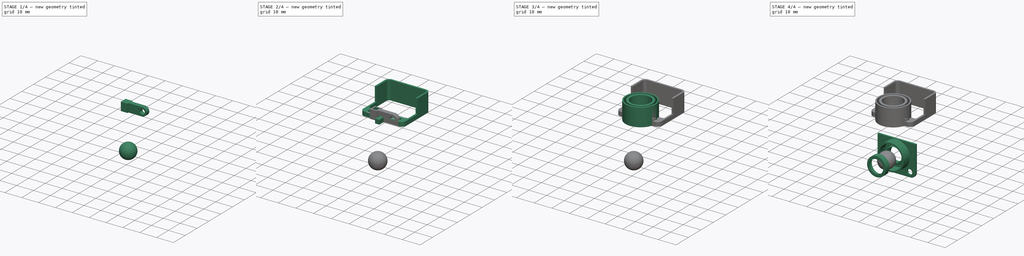
[diagram: build sequence overview — one tinted view per stage of 4, left to right]
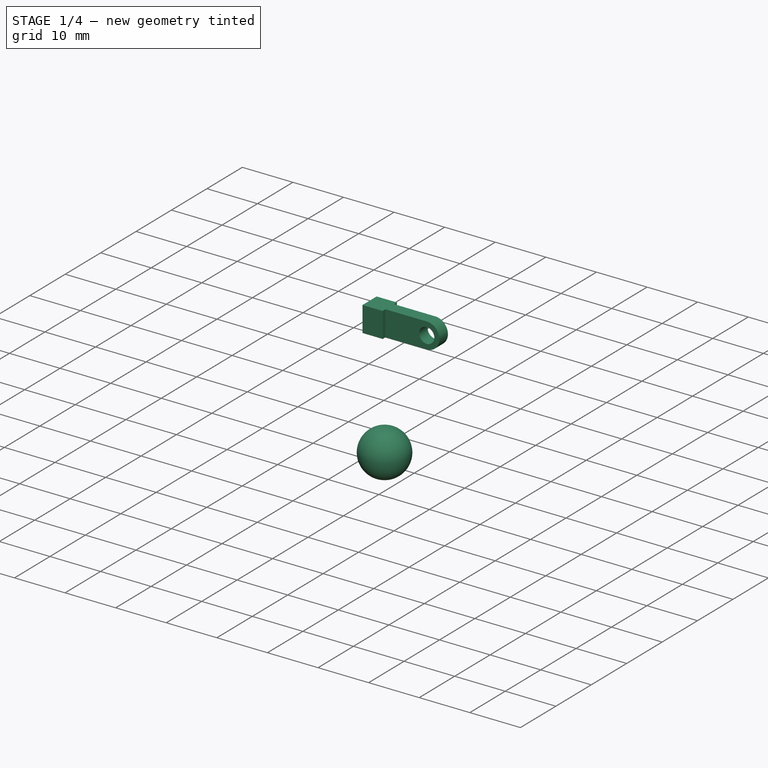
[diagram: stage 1 of 4 — iso view after this stage's code; geometry added in this stage tinted green]
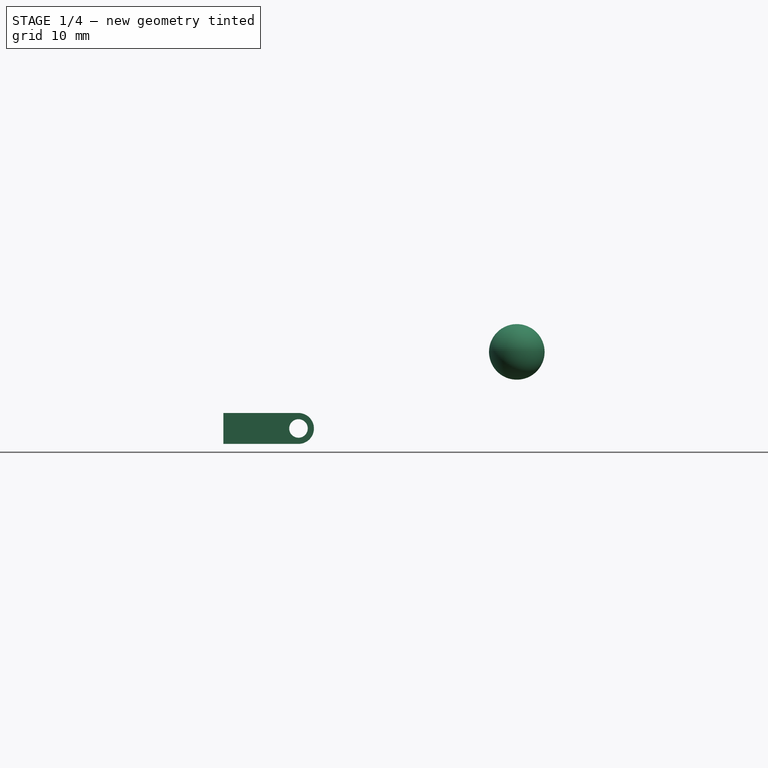
[diagram: stage 1 of 4 — front view after this stage's code; geometry added in this stage tinted green]
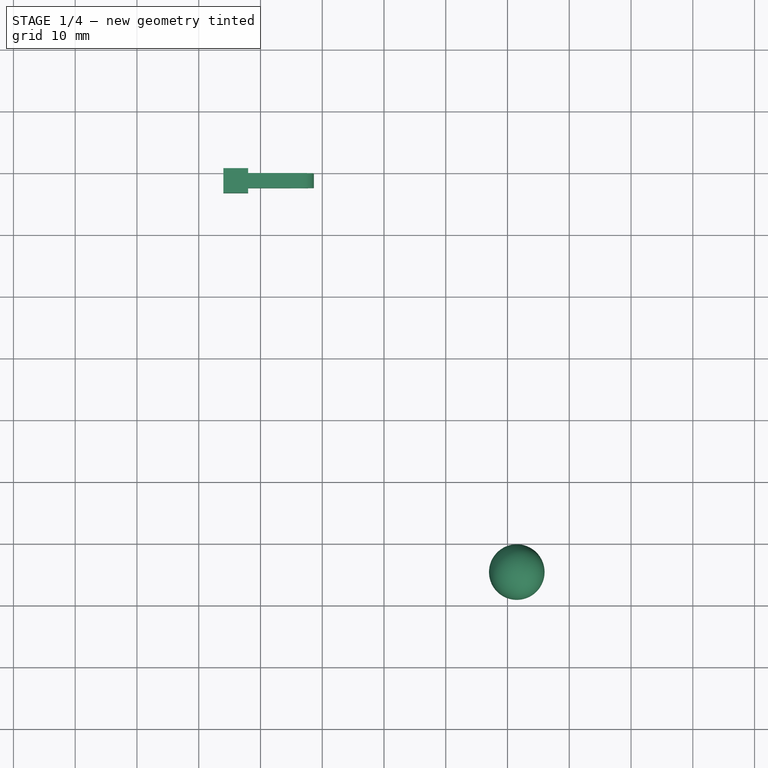
[diagram: stage 1 of 4 — top view after this stage's code; geometry added in this stage tinted green]
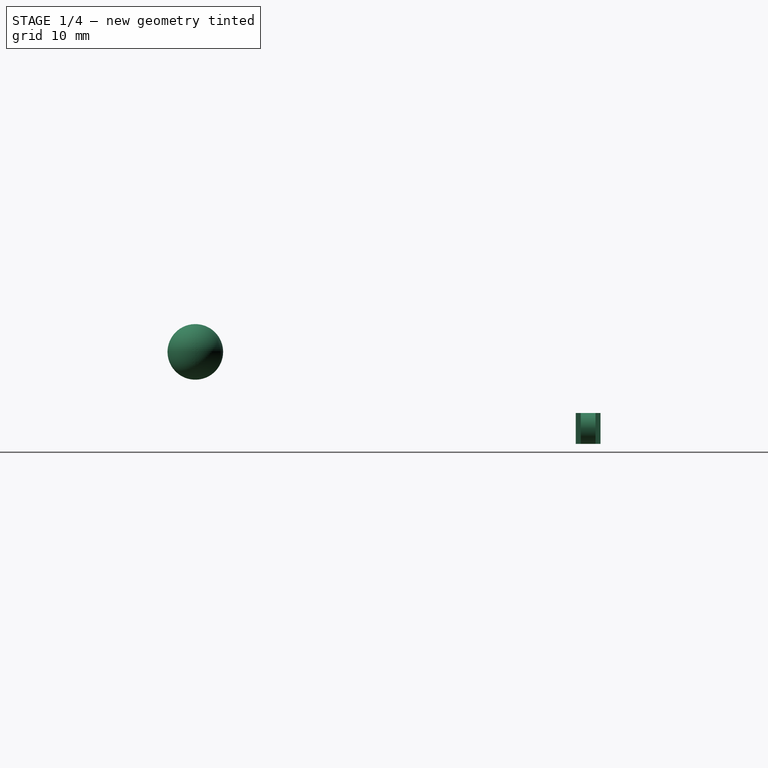
[diagram: stage 1 of 4 — right view after this stage's code; geometry added in this stage tinted green]
FCSTD DOCUMENT  (FreeCAD 0.20R29177 (Git))
Label: explode
License: All rights reserved
LicenseURL: http://en.wikipedia.org/wiki/All_rights_reserved
objects: Sketcher::SketchObject×8, PartDesign::Pad×4, PartDesign::Pocket×4, PartDesign::Body×3, Part::Cut×1, Part::Fuse×1, Spreadsheet::Sheet×1, PartDesign::AdditiveBox×1, Part::Sphere×1, Part::Feature×1
note: 33 computed .brp shape members not serialized (recipe doc carries the construction recipe); baked Part::Feature solids carry a one-line shape summary decoded from their .brp

FEATURE [PartDesign::Body] Body007  label="SpacersShadow"
  Group = -> [Sketch024,Pad014,Sketch025,Pad015]
  Origin = -> Origin007
  Placement = pos=(41.5,-38.1,7.5) rot=(1,0,0;1.5708rad)
  Tip = -> Pad015
FEATURE [Sketcher::SketchObject] Sketch018  label="CS-Ext-Base001"
  FullyConstrained = false
  MapMode = 5
  Placement = pos=(0,0,0) rot=(1,0,0;1.5708rad)
  Support = -> [XZ_Plane004]
  sketch-geometry (5):
    g0: LineSegment StartX=-6 StartY=5 StartZ=0 EndX=6 EndY=5 EndZ=0
    g1: LineSegment StartX=6.15088 StartY=0 StartZ=0 EndX=-6 EndY=0 EndZ=0
    g2: LineSegment StartX=-6 StartY=0 StartZ=0 EndX=-6 EndY=5 EndZ=0
    g3: ArcOfCircle CenterX=6.15088 CenterY=2.50228 CenterZ=0 NormalX=0 NormalY=0 NormalZ=1 AngleXU=0 Radius=2.50228 StartAngle=4.71239 EndAngle=7.91431
    g4: Circle CenterX=6.15088 CenterY=2.50228 CenterZ=0 NormalX=0 NormalY=0 NormalZ=1 AngleXU=0 Radius=1.5
  constraints (11):
    c: Coincident(g1,g2)
    c: Coincident(g2,g0)
    c: Horizontal(g1)
    c: Vertical(g2)
    c: PointOnObject(g1,g-1)
    c: Symmetric(g0,g0,g-2)
    c: DistanceY(g1,g0) = 5
    c: Coincident(g3,g0)
    c: Coincident(g4,g3)
    c: Diameter(g4) = 3
    c: DistanceX(g0,g0) = 12
FEATURE [PartDesign::Pad] Pad012  label="CS-Ext-Base"
  Direction = (0,-1,-2e-16)
  Length = 2.4
  Length2 = 10
  Placement = pos=(0,0,0) rot=(1,0,0;1.5708rad)
  Profile = -> Sketch018
  ReferenceAxis = -> Sketch018 [N_Axis]
  Type = 0
FEATURE [PartDesign::AdditiveBox] Box008  label="CS-Ext-Box"
  AttacherType = Attacher::AttachEngine3D
  AttachmentOffset = pos=(-6,0,-0.8) rot=(0,0,1;0rad)
  BaseFeature = -> Pad012
  Height = 4
  Length = 4
  MapMode = 2
  Placement = pos=(-6,0.8,2e-16) rot=(1,0,0;1.5708rad)
  Support = -> [Sketch018]
  Width = 5
FEATURE [PartDesign::Body] Body005  label="CS-Ext"
  Group = -> [Sketch018,Pad012,Box008,Sketch019,Pocket009]
  Origin = -> Origin005
  Placement = pos=(40.3,-35.2,-10.6) rot=(0,0,1;1.5708rad)
  Tip = -> Pocket009
FEATURE [Part::Sphere] Sphere
  Angle1 = -90
  Angle2 = 90
  Angle3 = 360
  AttacherType = Attacher::AttachEngine3D
  Placement = pos=(41.5,-64.8,14.9) rot=(0,0,1;0rad)
  Radius = 4.5
FEATURE [Part::Feature] tcs34725_rgb_sensor
  Placement = pos=(41.5,-22.1,15) rot=(-0.707107,0,0.707107;3.14159rad)
  shape: bbox 21.32 x 3.06 x 21.32 mm, 747 faces (baked)
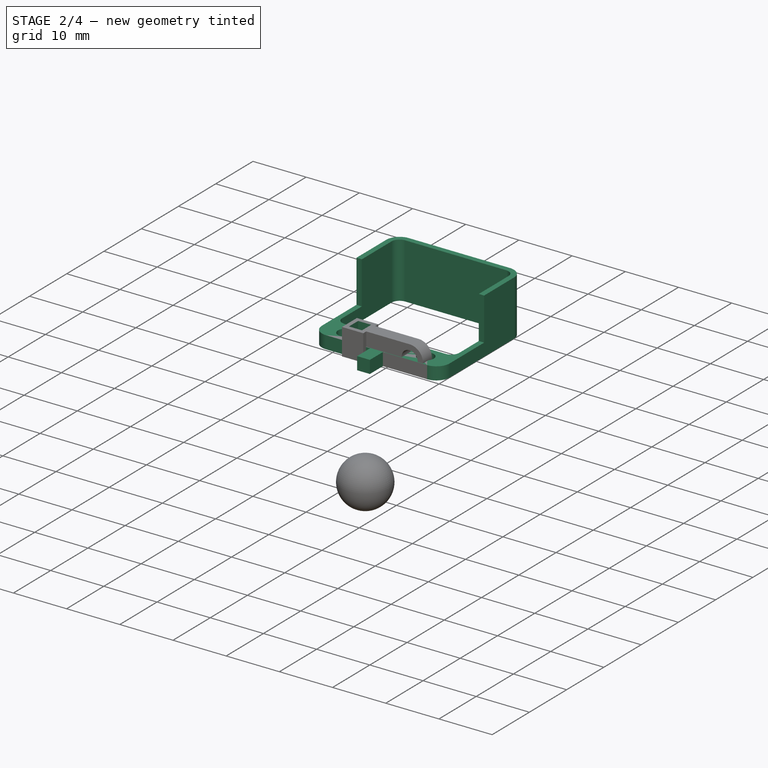
[diagram: stage 2 of 4 — iso view after this stage's code; geometry added in this stage tinted green]
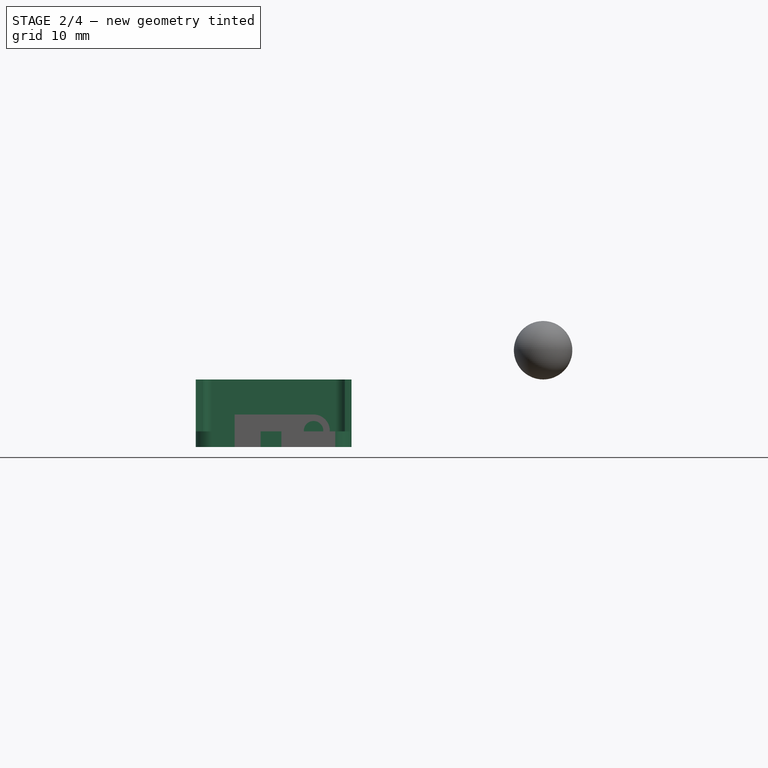
[diagram: stage 2 of 4 — front view after this stage's code; geometry added in this stage tinted green]
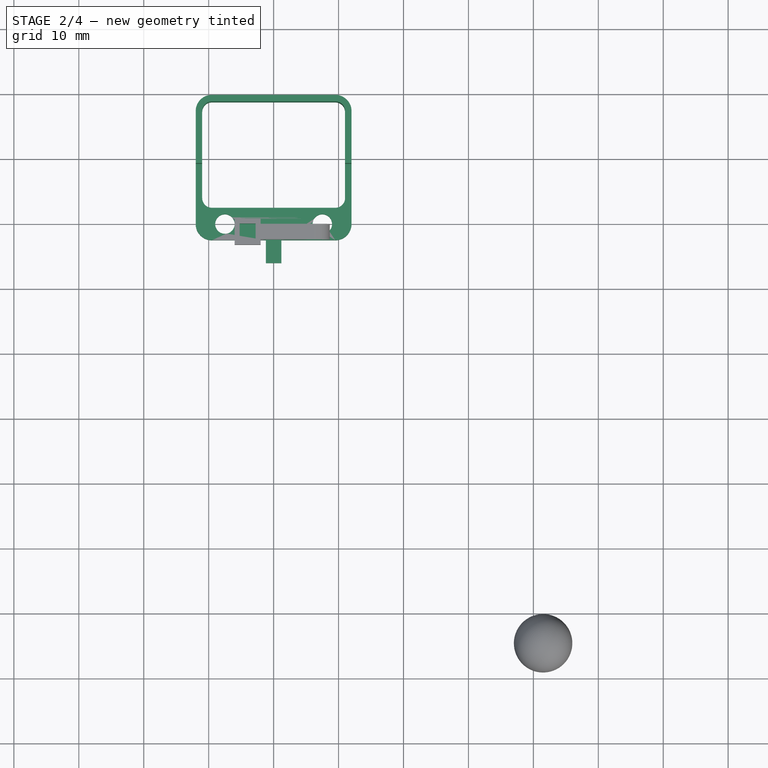
[diagram: stage 2 of 4 — top view after this stage's code; geometry added in this stage tinted green]
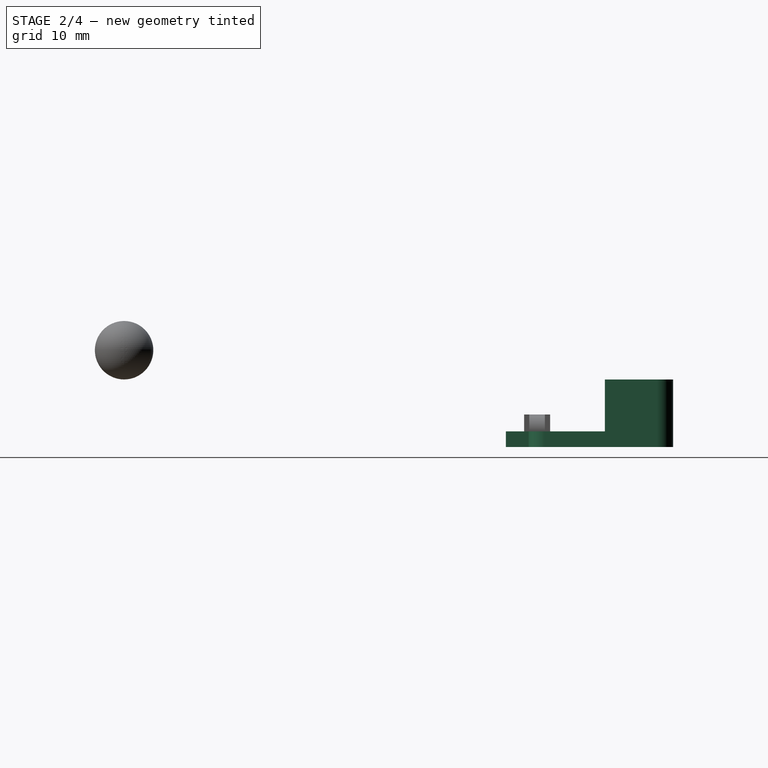
[diagram: stage 2 of 4 — right view after this stage's code; geometry added in this stage tinted green]
FEATURE [PartDesign::Body] Body006  label="SlitHorizontal"
  Group = -> [Sketch020,Pad013,Sketch021,Pocket010,Sketch022,Pocket011,Sketch023,Pocket012]
  Origin = -> Origin006
  Placement = pos=(41.45,-89.75,15.2) rot=(1,0,0;4.71239rad)
  Tip = -> Pocket012
FEATURE [Spreadsheet::Sheet] Spreadsheet001  label="params001"
  cells = A2(baseHeight)=1.5; C2=10mm Lens; D2=6mm Height; A3(lcdLength)=90; C3=8mm Lens; D3=4mm Height; A4(lcdWidth)=50; A5(holderWidthPole)=6; A6(lensDiameter)=8; A7(lensHeight)=1.25
FEATURE [Sketcher::SketchObject] Sketch024  label="SpacersShadowMain001"
  FullyConstrained = true
  MapMode = 5
  Support = -> [XY_Plane006]
  sketch-geometry (26):
    g0: Circle CenterX=-7.5 CenterY=0 CenterZ=0 NormalX=0 NormalY=0 NormalZ=1 AngleXU=0 Radius=1.5
    g1: Circle CenterX=7.5 CenterY=0 CenterZ=0 NormalX=0 NormalY=0 NormalZ=1 AngleXU=0 Radius=1.5
    g2: LineSegment StartX=1.2 StartY=-2.5 StartZ=0 EndX=1.2 EndY=-6 EndZ=0
    g3: LineSegment StartX=1.2 StartY=-6 StartZ=0 EndX=-1.2 EndY=-6 EndZ=0
    g4: LineSegment StartX=-1.2 StartY=-6 StartZ=0 EndX=-1.2 EndY=-2.5 EndZ=0
    g5: ArcOfCircle CenterX=-9.5 CenterY=17.25 CenterZ=0 NormalX=0 NormalY=0 NormalZ=1 AngleXU=0 Radius=2.5 StartAngle=1.5708 EndAngle=3.14159
    g6: LineSegment StartX=-9.5 StartY=19.75 StartZ=0 EndX=9.5 EndY=19.75 EndZ=0
    g7: ArcOfCircle CenterX=9.5 CenterY=17.25 CenterZ=0 NormalX=0 NormalY=0 NormalZ=1 AngleXU=0 Radius=2.5 StartAngle=0 EndAngle=1.5708
    g8: LineSegment StartX=12 StartY=17.25 StartZ=0 EndX=12 EndY=1.42e-14 EndZ=0
    g9: ArcOfCircle CenterX=9.5 CenterY=7.1e-15 CenterZ=0 NormalX=0 NormalY=0 NormalZ=1 AngleXU=0 Radius=2.5 StartAngle=4.71239 EndAngle=6.28319
    g10: LineSegment StartX=9.5 StartY=-2.5 StartZ=0 EndX=1.2 EndY=-2.5 EndZ=0
    g11: ArcOfCircle CenterX=-9.5 CenterY=0 CenterZ=0 NormalX=0 NormalY=0 NormalZ=1 AngleXU=0 Radius=2.5 StartAngle=3.14159 EndAngle=4.71239
    g12: LineSegment StartX=-12 StartY=-8e-16 StartZ=0 EndX=-12 EndY=17.25 EndZ=0
    g13: GeomPoint X=-12 Y=19.75 Z=0
    g14: GeomPoint X=12 Y=-2.5 Z=0
    g15: LineSegment StartX=-1.2 StartY=-2.5 StartZ=0 EndX=-9.5 EndY=-2.5 EndZ=0
    g16: ArcOfCircle CenterX=-9.5 CenterY=17.25 CenterZ=0 NormalX=0 NormalY=0 NormalZ=1 AngleXU=0 Radius=1.5 StartAngle=1.5708 EndAngle=3.14159
    g17: LineSegment StartX=-9.5 StartY=18.75 StartZ=0 EndX=9.5 EndY=18.75 EndZ=0
    g18: ArcOfCircle CenterX=9.5 CenterY=17.25 CenterZ=0 NormalX=0 NormalY=0 NormalZ=1 AngleXU=0 Radius=1.5 StartAngle=0 EndAngle=1.5708
    g19: LineSegment StartX=11 StartY=17.25 StartZ=0 EndX=11 EndY=4 EndZ=0
    g20: ArcOfCircle CenterX=9.5 CenterY=4 CenterZ=0 NormalX=0 NormalY=0 NormalZ=1 AngleXU=0 Radius=1.5 StartAngle=4.71239 EndAngle=6.28319
    g21: LineSegment StartX=9.5 StartY=2.5 StartZ=0 EndX=-9.5 EndY=2.5 EndZ=0
    g22: ArcOfCircle CenterX=-9.5 CenterY=4 CenterZ=0 NormalX=0 NormalY=0 NormalZ=1 AngleXU=0 Radius=1.5 StartAngle=3.14159 EndAngle=4.71239
    g23: LineSegment StartX=-11 StartY=4 StartZ=0 EndX=-11 EndY=17.25 EndZ=0
    g24: GeomPoint X=-11 Y=18.75 Z=0
    g25: GeomPoint X=11 Y=2.5 Z=0
  constraints (65):
    c: Equal(g0,g1)
    c: Diameter(g0) = 3
    c: Coincident(g2,g3)
    c: Coincident(g3,g4)
    c: Horizontal(g3)
    c: Vertical(g2)
    c: Vertical(g4)
    c: Symmetric(g4,g2,g-2)
    c: DistanceX(g3,g3) = 2.4
    c: DistanceY(g2,g2) = 3.5
    c: Tangent(g5,g6) = 1.5708
    c: Tangent(g6,g7) = 1.5708
    c: Tangent(g7,g8) = 1.5708
    c: Tangent(g8,g9) = 1.5708
    c: Tangent(g9,g10) = 1.5708
    c: Coincident(g15,g11) = 1.5708
    c: Tangent(g11,g12) = 1.5708
    c: Tangent(g12,g5) = 1.5708
    c: Horizontal(g6)
    c: Horizontal(g10)
    c: Vertical(g8)
    c: Vertical(g12)
    c: Equal(g5,g7)
    c: Equal(g7,g9)
    c: Equal(g9,g11)
    c: PointOnObject(g13,g6)
    c: PointOnObject(g13,g12)
    c: PointOnObject(g14,g8)
    c: PointOnObject(g14,g10)
    c: PointOnObject(g11,g-1)
    c: DistanceX(g11,g9) = 19
    c: DistanceX(g11,g-1) = 9.5
    c: Diameter(g11) = 5
    c: Coincident(g10,g2)
    c: Horizontal(g15)
    c: Coincident(g15,g4)
    c: DistanceX(g11,g11) = 0
    c: PointOnObject(g0,g-1)
    c: PointOnObject(g1,g-1)
    c: DistanceX(g0,g-1) = 7.5
    c: DistanceX(g0,g1) = 15
    c: DistanceY(g8,g8) = 17.25
    c: Tangent(g16,g17) = 1.5708
    c: Tangent(g17,g18) = 1.5708
    c: Tangent(g18,g19) = 1.5708
    c: Tangent(g19,g20) = 1.5708
    c: Tangent(g20,g21) = 1.5708
    c: Tangent(g21,g22) = 1.5708
    c: Tangent(g22,g23) = 1.5708
    c: Tangent(g23,g16) = 1.5708
    c: Horizontal(g17)
    c: Horizontal(g21)
    c: Vertical(g19)
    c: Vertical(g23)
    c: Equal(g16,g18)
    c: Equal(g18,g20)
    c: Equal(g20,g22)
    c: PointOnObject(g24,g17)
    c: PointOnObject(g24,g23)
    c: PointOnObject(g25,g19)
    c: PointOnObject(g25,g21)
    c: Diameter(g16) = 3
    c: Coincident(g16,g5)
    c: DistanceX(g17,g17) = 19
    c: DistanceY(g9,g20) = 5
FEATURE [PartDesign::Pad] Pad014  label="SpacersShadowMain"
  Direction = (0,0,1)
  Length = 2.4
  Length2 = 10
  Profile = -> Sketch024
  ReferenceAxis = -> Sketch024 [N_Axis]
  Type = 0
FEATURE [Sketcher::SketchObject] Sketch025  label="Shadow001"
  FullyConstrained = true
  MapMode = 5
  Placement = pos=(0,0,2.4) rot=(0,0,1;0rad)
  Support = -> [Pad014]
  expr: Constraints[8] = 17.25 + 1.5
  sketch-geometry (12):
    g0: ArcOfCircle CenterX=-9.5 CenterY=17.25 CenterZ=0 NormalX=0 NormalY=0 NormalZ=1 AngleXU=0 Radius=1.5 StartAngle=1.5708 EndAngle=3.14159
    g1: ArcOfCircle CenterX=9.5 CenterY=17.25 CenterZ=0 NormalX=0 NormalY=0 NormalZ=1 AngleXU=0 Radius=1.5 StartAngle=0 EndAngle=1.5708
    g2: LineSegment StartX=-9.5 StartY=18.75 StartZ=0 EndX=9.5 EndY=18.75 EndZ=0
    g3: LineSegment StartX=-11 StartY=17.25 StartZ=0 EndX=-11 EndY=9.25 EndZ=0
    g4: LineSegment StartX=11 StartY=17.25 StartZ=0 EndX=11 EndY=9.25 EndZ=0
    g5: LineSegment StartX=-11 StartY=9.25 StartZ=0 EndX=-12 EndY=9.25 EndZ=0
    g6: LineSegment StartX=11 StartY=9.25 StartZ=0 EndX=12 EndY=9.25 EndZ=0
    g7: LineSegment StartX=-12 StartY=9.25 StartZ=0 EndX=-12 EndY=17.25 EndZ=0
    g8: LineSegment StartX=12 StartY=9.25 StartZ=0 EndX=12 EndY=17.25 EndZ=0
    g9: LineSegment StartX=-9.5 StartY=19.75 StartZ=0 EndX=9.5 EndY=19.75 EndZ=0
    g10: ArcOfCircle CenterX=-9.5 CenterY=17.25 CenterZ=0 NormalX=0 NormalY=0 NormalZ=1 AngleXU=0 Radius=2.5 StartAngle=1.5708 EndAngle=3.14159
    g11: ArcOfCircle CenterX=9.5 CenterY=17.25 CenterZ=0 NormalX=0 NormalY=0 NormalZ=1 AngleXU=0 Radius=2.5 StartAngle=6e-16 EndAngle=1.5708
  constraints (40):
    c: DistanceY(g-1,g0) = 17.25
    c: DistanceY(g-1,g1) = 17.25
    c: DistanceX(g0,g1) = 19
    c: DistanceX(g-1,g1) = 9.5
    c: Equal(g0,g1)
    c: Diameter(g0) = 3
    c: Horizontal(g2)
    c: DistanceX(g2,g2) = 19
    c: DistanceY(g-1,g2) = 18.75
    c: DistanceX(g2,g-1) = 9.5
    c: PointOnObject(g0,g2)
    c: PointOnObject(g1,g2)
    c: Vertical(g3)
    c: Vertical(g4)
    c: Equal(g3,g4)
    c: Coincident(g3,g0)
    c: DistanceY(g0,g0) = 0
    c: Coincident(g4,g1)
    c: DistanceY(g1,g1) = 0
    c: Coincident(g5,g3)
    c: Coincident(g6,g4)
    c: Horizontal(g6)
    c: Horizontal(g5)
    c: Equal(g5,g6)
    c: Coincident(g7,g5)
    c: Vertical(g7)
    c: Coincident(g8,g6)
    c: Vertical(g8)
    c: Equal(g7,g3)
    c: Equal(g3,g8)
    c: Coincident(g10,g0)
    c: Coincident(g10,g7)
    c: Coincident(g10,g9)
    c: Coincident(g11,g1)
    c: Coincident(g11,g8)
    c: Coincident(g11,g9)
    c: Diameter(g11) = 5
    c: DistanceX(g9,g-1) = 9.5
    c: DistanceX(g-1,g9) = 9.5
    c: DistanceY(g8,g8) = 8
FEATURE [PartDesign::Pad] Pad015  label="Shadow"
  BaseFeature = -> Pad014
  Direction = (0,0,1)
  Length = 8
  Length2 = 10
  Profile = -> Sketch025
  ReferenceAxis = -> Sketch025 [N_Axis]
  Type = 0
FEATURE [Sketcher::SketchObject] Sketch019  label="CS-Ext-Hole001"
  FullyConstrained = true
  MapMode = 5
  Placement = pos=(-6,0.8,5) rot=(0,0,1;3.14159rad)
  Support = -> [Box008]
  expr: Constraints[10] = (4 - 2.45) / 2
  expr: Constraints[11] = (4 - 2.45) / 2
  sketch-geometry (4):
    g0: LineSegment StartX=-3.225 StartY=3.225 StartZ=0 EndX=-0.775 EndY=3.225 EndZ=0
    g1: LineSegment StartX=-0.775 StartY=3.225 StartZ=0 EndX=-0.775 EndY=0.775 EndZ=0
    g2: LineSegment StartX=-0.775 StartY=0.775 StartZ=0 EndX=-3.225 EndY=0.775 EndZ=0
    g3: LineSegment StartX=-3.225 StartY=0.775 StartZ=0 EndX=-3.225 EndY=3.225 EndZ=0
  constraints (12):
    c: Coincident(g0,g1)
    c: Coincident(g1,g2)
    c: Coincident(g2,g3)
    c: Coincident(g3,g0)
    c: Horizontal(g0)
    c: Horizontal(g2)
    c: Vertical(g1)
    c: Vertical(g3)
    c: Distance(g0) = 2.45
    c: Equal(g3,g0)
    c: DistanceX(g1,g-1) = 0.775
    c: DistanceY(g-1,g1) = 0.775
FEATURE [PartDesign::Pocket] Pocket009  label="CS-Ext-Hole"
  BaseFeature = -> Box008
  Direction = (0,2e-16,-1)
  Length = 5
  Length2 = 5
  Placement = pos=(-6,0.8,0) rot=(1,0,0;1.5708rad)
  Profile = -> Sketch019
  ReferenceAxis = -> Sketch019 [N_Axis]
  Type = 1
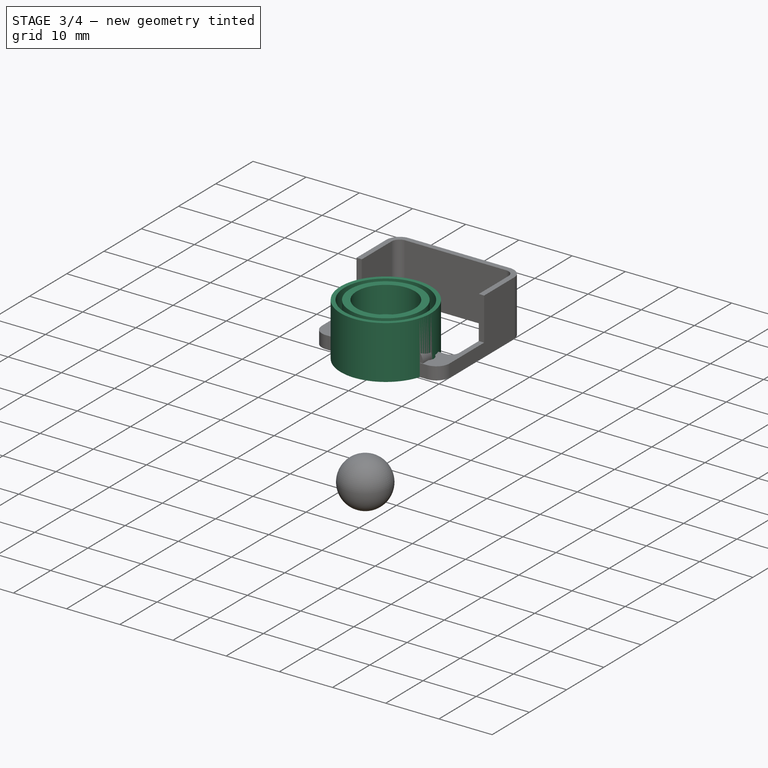
[diagram: stage 3 of 4 — iso view after this stage's code; geometry added in this stage tinted green]
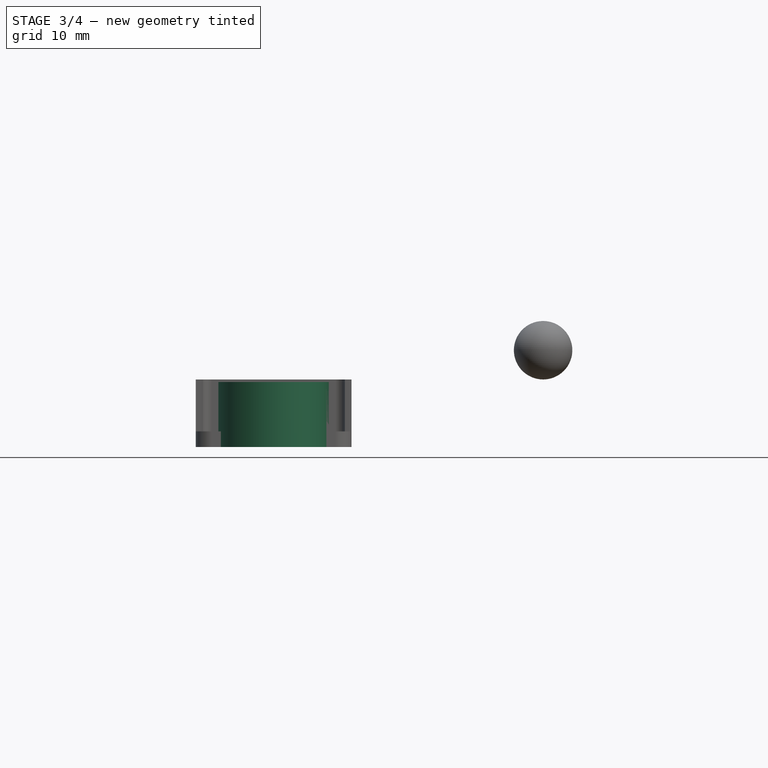
[diagram: stage 3 of 4 — front view after this stage's code; geometry added in this stage tinted green]
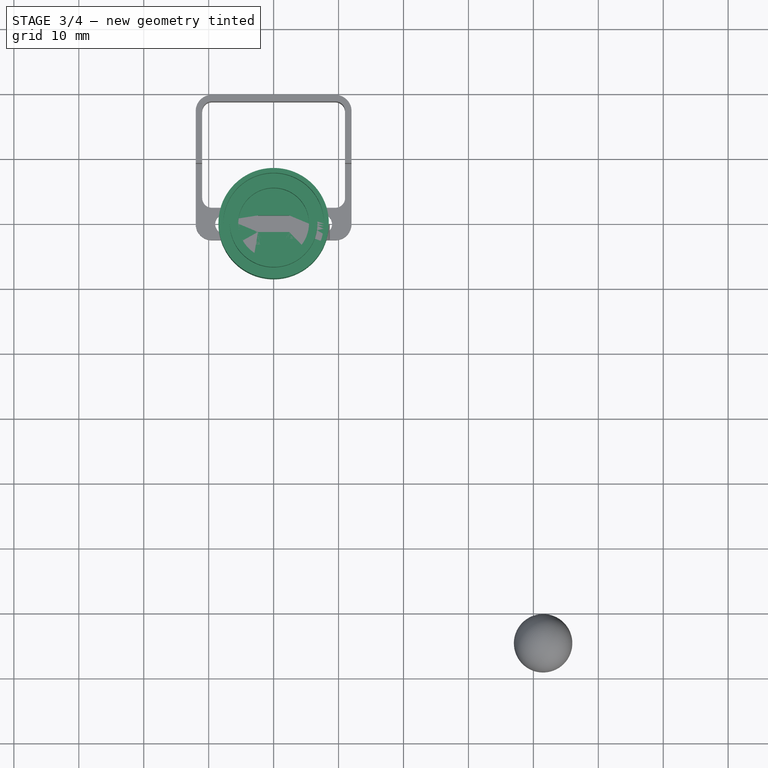
[diagram: stage 3 of 4 — top view after this stage's code; geometry added in this stage tinted green]
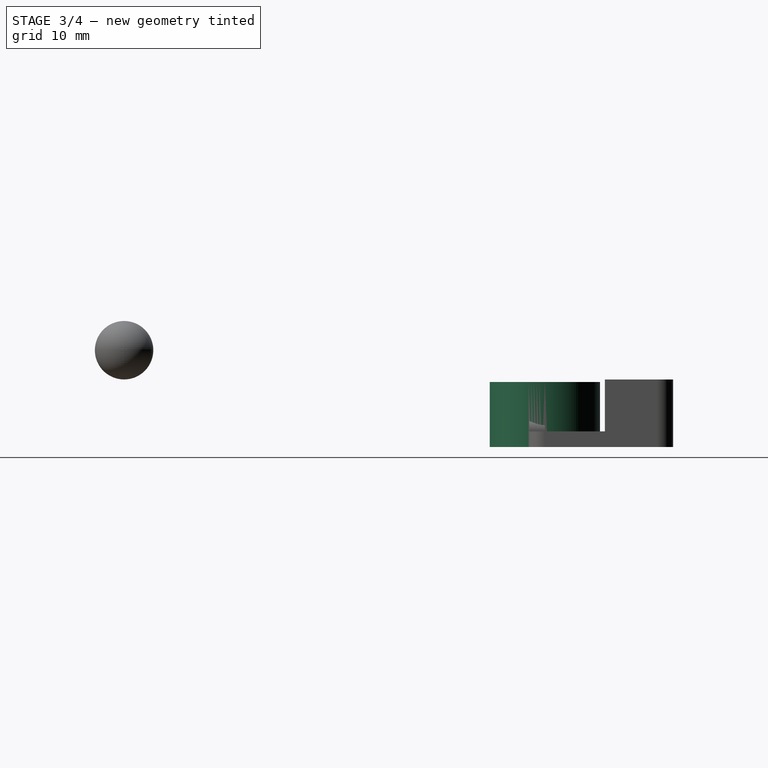
[diagram: stage 3 of 4 — right view after this stage's code; geometry added in this stage tinted green]
FEATURE [Sketcher::SketchObject] Sketch020  label="SlitBaseH001"
  FullyConstrained = true
  MapMode = 5
  Support = -> [XY_Plane005]
  sketch-geometry (5):
    g0: Circle CenterX=0 CenterY=0 CenterZ=0 NormalX=0 NormalY=0 NormalZ=1 AngleXU=0 Radius=8.5
    g1: LineSegment StartX=-2.41 StartY=1.275 StartZ=0 EndX=2.41 EndY=1.275 EndZ=0
    g2: LineSegment StartX=2.41 StartY=1.275 StartZ=0 EndX=2.41 EndY=-1.275 EndZ=0
    g3: LineSegment StartX=2.41 StartY=-1.275 StartZ=0 EndX=-2.41 EndY=-1.275 EndZ=0
    g4: LineSegment StartX=-2.41 StartY=-1.275 StartZ=0 EndX=-2.41 EndY=1.275 EndZ=0
  constraints (13):
    c: Diameter(g0) = 17
    c: Coincident(g1,g2)
    c: Coincident(g2,g3)
    c: Coincident(g3,g4)
    c: Coincident(g4,g1)
    c: Horizontal(g1)
    c: Horizontal(g3)
    c: Vertical(g2)
    c: Vertical(g4)
    c: Symmetric(g1,g2,g0)
    c: Coincident(g0,g-1)
    c: DistanceY(g2,g2) = 2.55
    c: DistanceX(g1,g1) = 4.82
FEATURE [PartDesign::Pad] Pad013  label="SlitBaseH"
  Direction = (0,0,1)
  Length = 10
  Length2 = 10
  Profile = -> Sketch020
  ReferenceAxis = -> Sketch020 [N_Axis]
  Type = 0
FEATURE [Sketcher::SketchObject] Sketch021  label="SlitFixH001"
  FullyConstrained = true
  MapMode = 5
  Placement = pos=(0,0,10) rot=(0,0,1;0rad)
  Support = -> [Pad013]
  sketch-geometry (2):
    g0: Circle CenterX=0 CenterY=0 CenterZ=0 NormalX=0 NormalY=0 NormalZ=1 AngleXU=0 Radius=7.75
    g1: Circle CenterX=0 CenterY=0 CenterZ=0 NormalX=0 NormalY=0 NormalZ=1 AngleXU=0 Radius=6.75
  constraints (4):
    c: Coincident(g0,g-1)
    c: Coincident(g1,g0)
    c: Diameter(g1) = 13.5
    c: Diameter(g0) = 15.5
FEATURE [PartDesign::Pocket] Pocket010  label="SlitFixH"
  BaseFeature = -> Pad013
  Direction = (0,0,-1)
  Length = 5
  Length2 = 5
  Profile = -> Sketch021
  ReferenceAxis = -> Sketch021 [N_Axis]
  Type = 0
FEATURE [Sketcher::SketchObject] Sketch022  label="SlitPocketH001"
  FullyConstrained = true
  MapMode = 5
  Placement = pos=(0,0,10) rot=(0,0,1;0rad)
  Support = -> [Pocket010]
  expr: Constraints[1] = <<params001>>.lensDiameter + 2.9
  sketch-geometry (1):
    g0: Circle CenterX=0 CenterY=0 CenterZ=0 NormalX=0 NormalY=0 NormalZ=1 AngleXU=0 Radius=5.45
  constraints (2):
    c: Coincident(g0,g-1)
    c: Diameter(g0) = 10.9
FEATURE [PartDesign::Pocket] Pocket011  label="SlitPocketH"
  BaseFeature = -> Pocket010
  Direction = (0,0,-1)
  Length = 5
  Length2 = 5
  Profile = -> Sketch022
  ReferenceAxis = -> Sketch022 [N_Axis]
  Type = 0
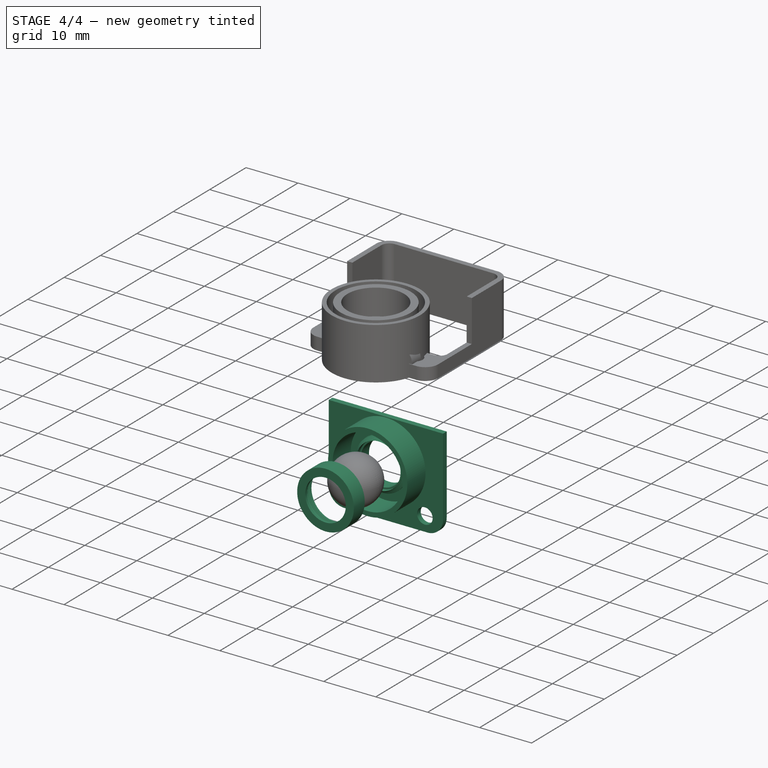
[diagram: stage 4 of 4 — iso view after this stage's code; geometry added in this stage tinted green]
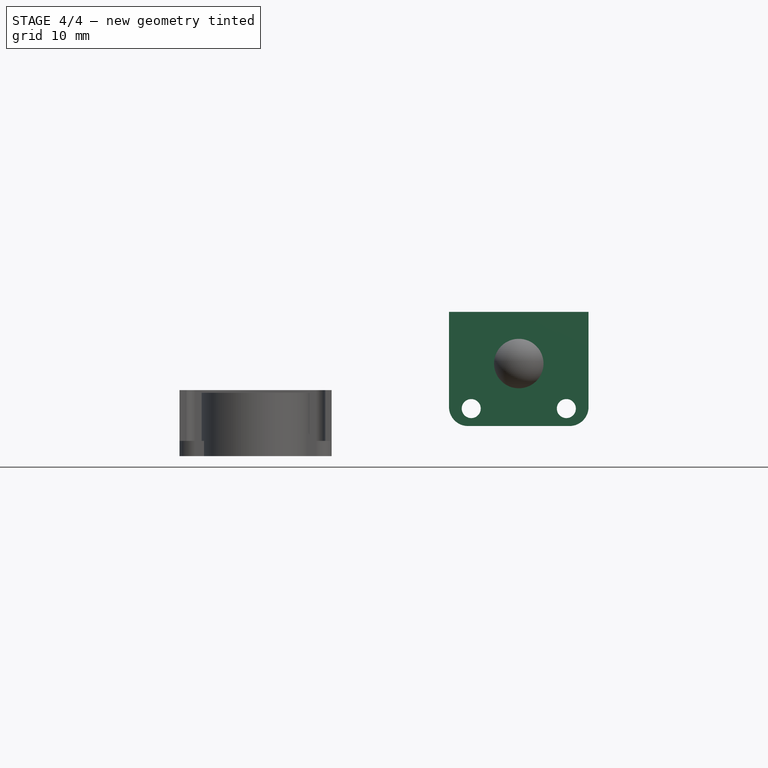
[diagram: stage 4 of 4 — front view after this stage's code; geometry added in this stage tinted green]
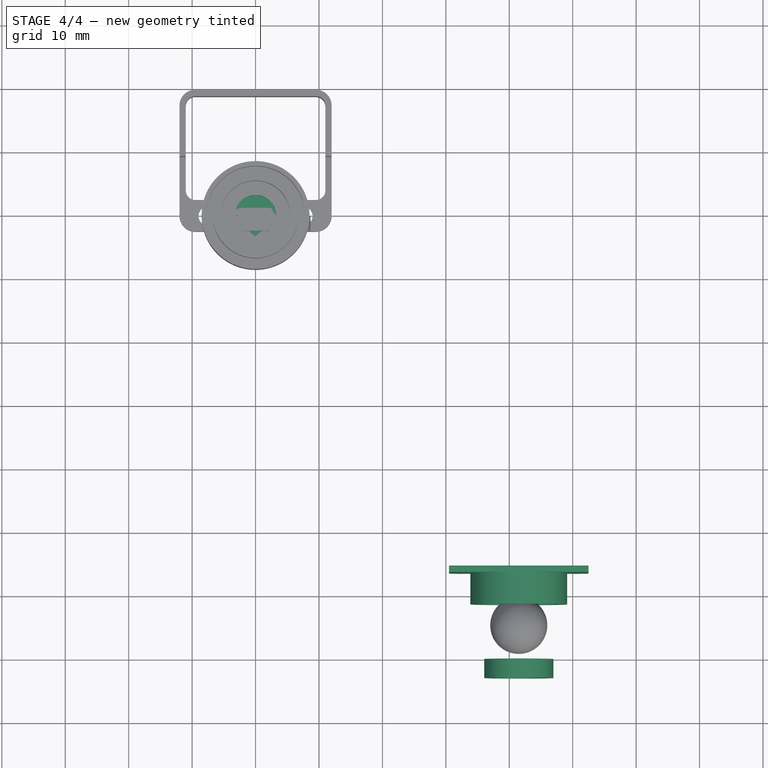
[diagram: stage 4 of 4 — top view after this stage's code; geometry added in this stage tinted green]
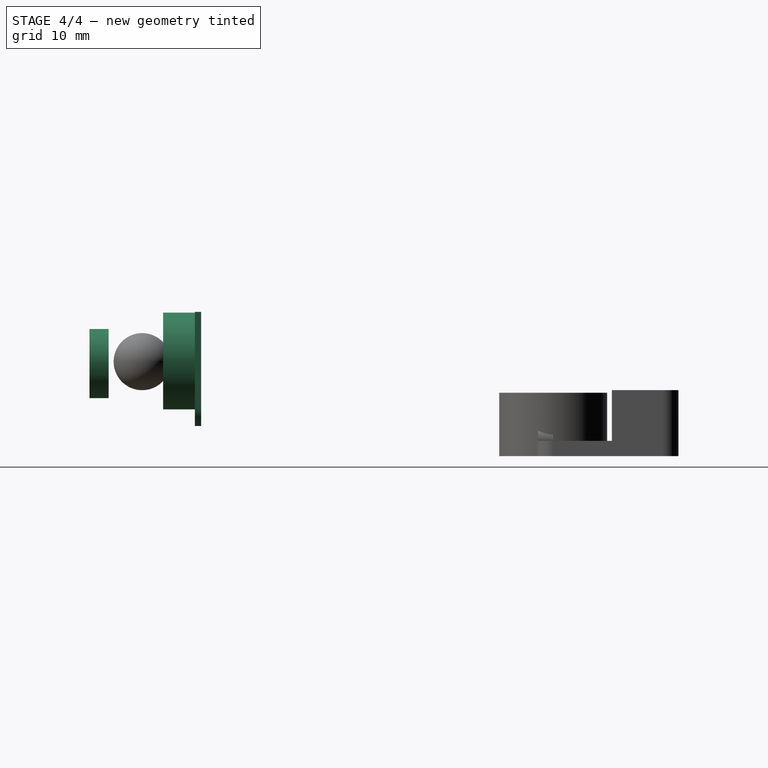
[diagram: stage 4 of 4 — right view after this stage's code; geometry added in this stage tinted green]
FEATURE [Part::Cut] Cut003  label="PD-cap"
  Placement = pos=(41.5,-73.1,14.6) rot=(1,0,0;4.71239rad)
FEATURE [Part::Fuse] Fusion009  label="PD-holder-cap"
  Placement = pos=(41.5,-55.5,15) rot=(1,0,0;1.5708rad)
FEATURE [Sketcher::SketchObject] Sketch023  label="SlitPocketHLens001"
  FullyConstrained = true
  MapMode = 5
  Placement = pos=(0,0,5) rot=(0,0,1;0rad)
  Support = -> [Pocket011]
  sketch-geometry (1):
    g0: Circle CenterX=0 CenterY=0 CenterZ=0 NormalX=0 NormalY=0 NormalZ=1 AngleXU=0 Radius=3.25
  constraints (2):
    c: Coincident(g0,g-1)
    c: Diameter(g0) = 6.5
FEATURE [PartDesign::Pocket] Pocket012  label="SlitPocketHLens"
  BaseFeature = -> Pocket011
  Direction = (0,0,-1)
  Length = 2
  Length2 = 5
  Profile = -> Sketch023
  ReferenceAxis = -> Sketch023 [N_Axis]
  Type = 0
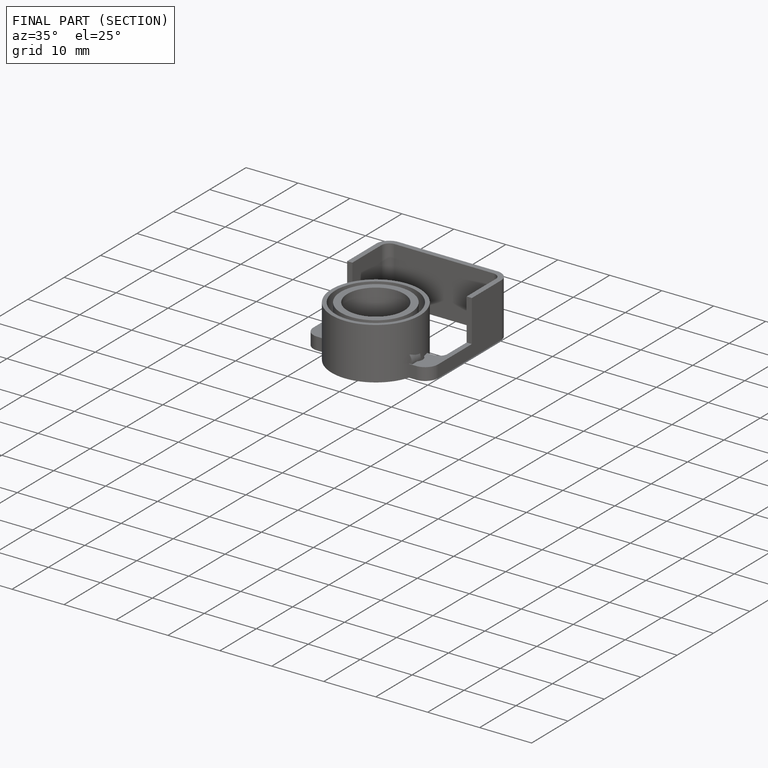
[diagram: finished part — half-section view (interior)]
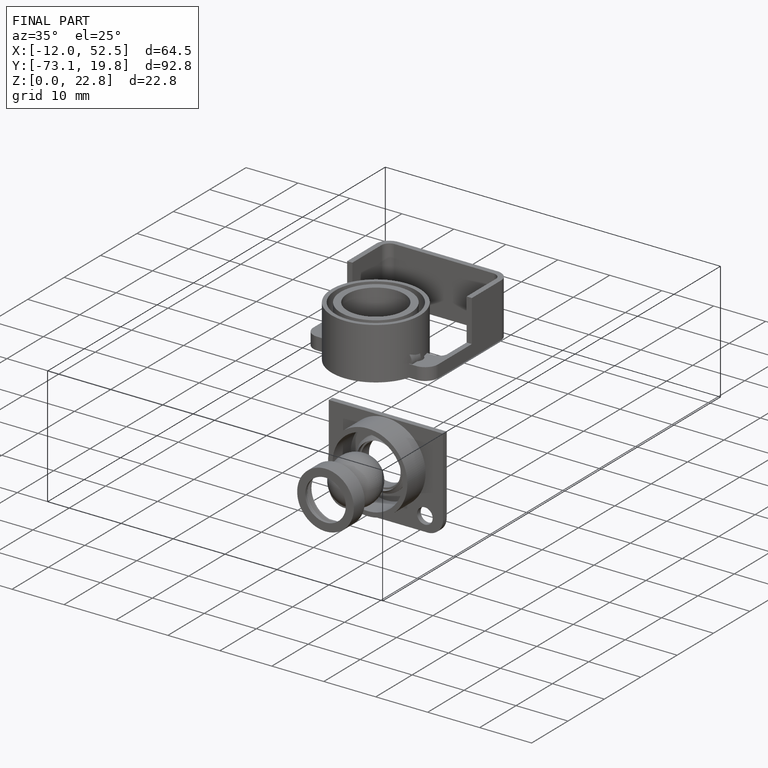
[diagram: finished part — iso view with bounding-box wireframe]
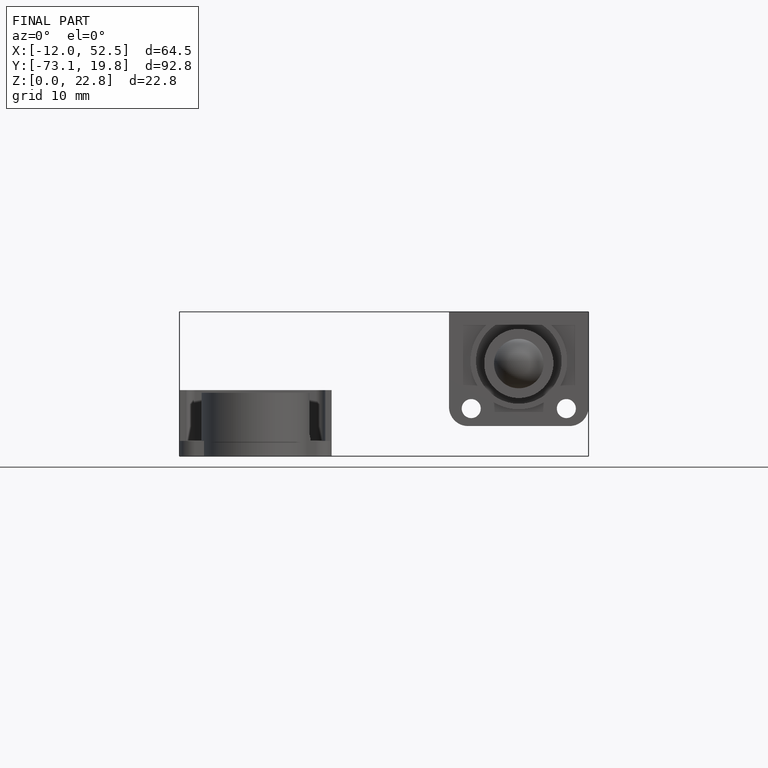
[diagram: finished part — front view with bounding-box wireframe]
